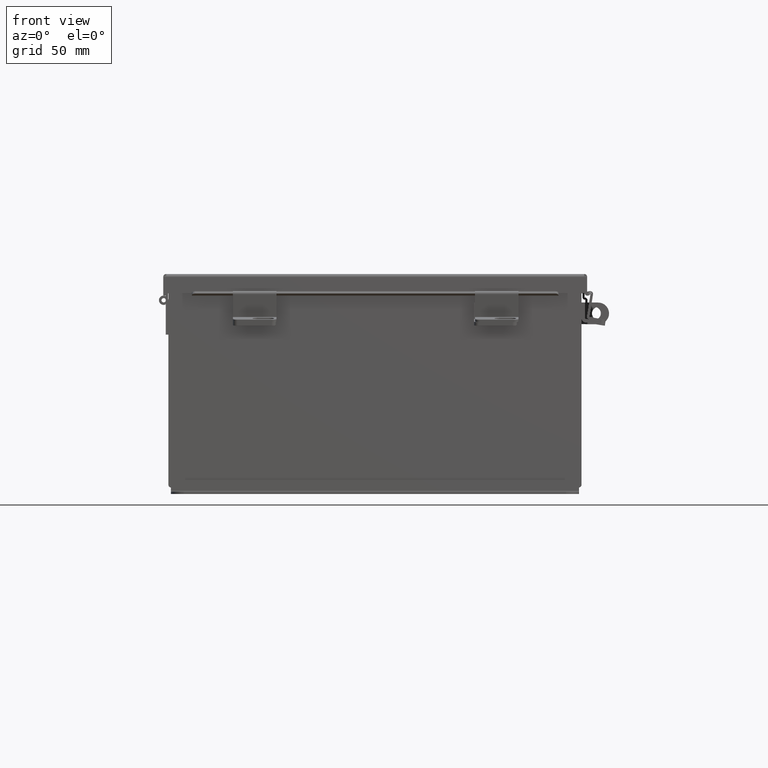
[diagram: clean part render]
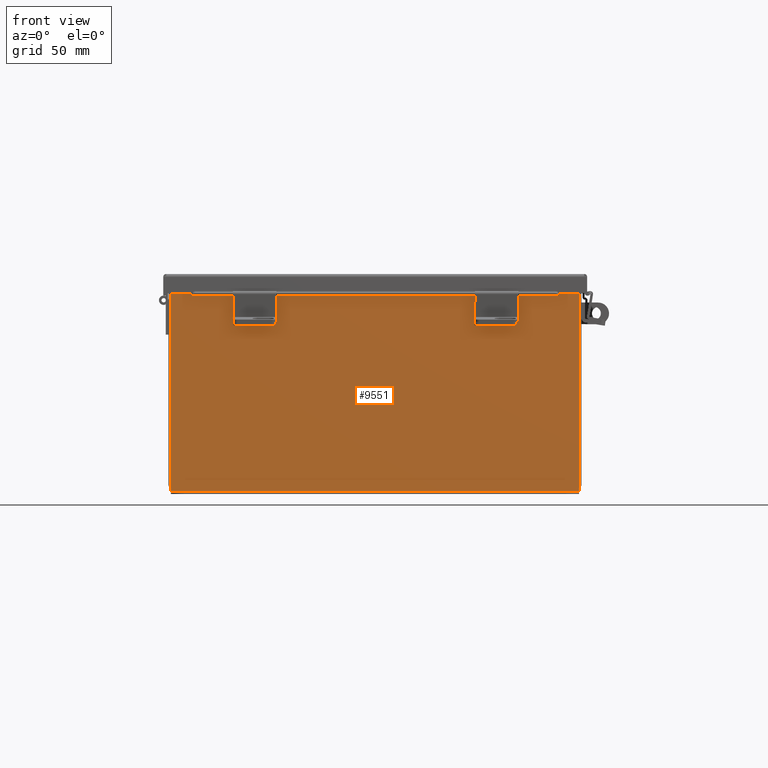
[diagram: same view with one face highlighted and labeled with its STEP entity id]
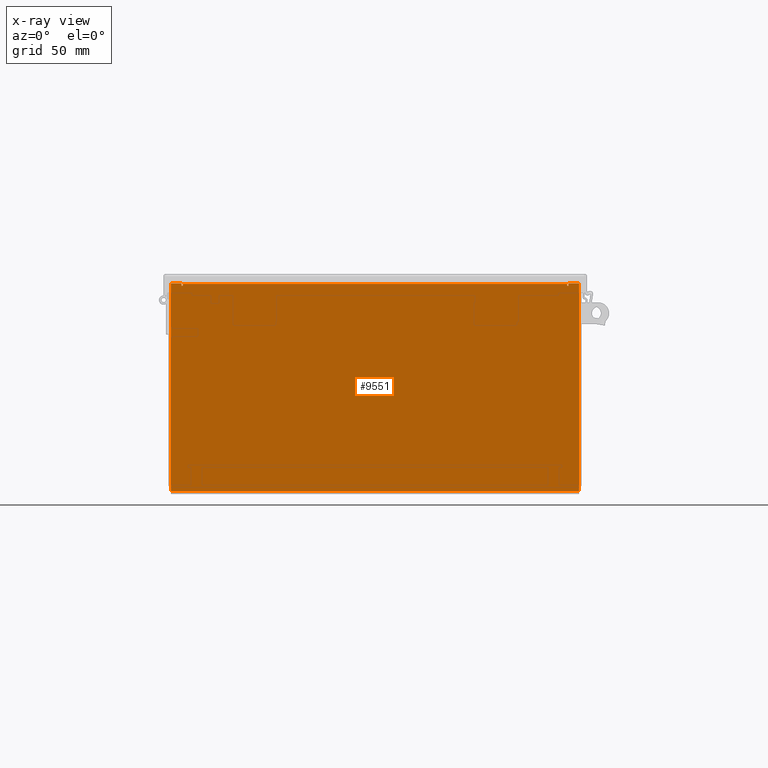
[diagram: x-ray of the same camera — body ghosted, the highlighted face saturated]
A machine part, front view. The second image highlights one B-rep face of the part: STEP entity #9551.
The next image is the same camera in x-ray: the body ghosted, the highlighted face saturated — about 0% of this face is hidden behind the body in this view.
In plain terms, the highlighted planar face has unit normal (-0, 1, -0).
Its self-contained STEP definition (entity closure, byte-faithful):
#215 = DIRECTION ( 'NONE',  ( 1.000000000000000000, 0.0000000000000000000, 0.0000000000000000000 ) ) ;
#321 = ORIENTED_EDGE ( 'NONE', *, *, #9995, .T. ) ;
#562 = DIRECTION ( 'NONE',  ( -0.0000000000000000000, -0.0000000000000000000, 1.000000000000000000 ) ) ;
#618 = AXIS2_PLACEMENT_3D ( 'NONE', #2483, #12542, #3938 ) ;
#650 = EDGE_CURVE ( 'NONE', #7864, #7455, #8608, .T. ) ;
#672 = ORIENTED_EDGE ( 'NONE', *, *, #650, .T. ) ;
#789 = DIRECTION ( 'NONE',  ( 1.000000000000000000, 0.0000000000000000000, 0.0000000000000000000 ) ) ;
#818 = VERTEX_POINT ( 'NONE', #11989 ) ;
#853 = EDGE_LOOP ( 'NONE', ( #12527, #11782, #3981, #672, #12972, #17708, #9816, #321, #3625, #18167, #6450, #16700 ) ) ;
#1237 = CARTESIAN_POINT ( 'NONE',  ( 0.0000000000000000000, 0.0000000000000000000, 0.0000000000000000000 ) ) ;
#1622 = DIRECTION ( 'NONE',  ( 1.000000000000000000, -0.0000000000000000000, -0.0000000000000000000 ) ) ;
#1797 = VERTEX_POINT ( 'NONE', #7756 ) ;
#1814 = CARTESIAN_POINT ( 'NONE',  ( 5.582299999999999200, 0.0000000000000000000, 2.912299999999998800 ) ) ;
#1830 = DIRECTION ( 'NONE',  ( -2.170286390199955400E-014, 0.0000000000000000000, -1.000000000000000000 ) ) ;
#1844 = LINE ( 'NONE', #13289, #12849 ) ;
#1970 = VERTEX_POINT ( 'NONE', #16709 ) ;
#2068 = LINE ( 'NONE', #8111, #10166 ) ;
#2238 = CARTESIAN_POINT ( 'NONE',  ( -5.925300000000001800, 0.0000000000000000000, 2.925300000000000000 ) ) ;
#2273 = LINE ( 'NONE', #5915, #13258 ) ;
#2483 = CARTESIAN_POINT ( 'NONE',  ( -5.600975000000000000, 0.0000000000000000000, 2.874949999999998800 ) ) ;
#2655 = VERTEX_POINT ( 'NONE', #13838 ) ;
#3625 = ORIENTED_EDGE ( 'NONE', *, *, #6205, .T. ) ;
#3626 = EDGE_CURVE ( 'NONE', #8523, #5461, #9955, .T. ) ;
#3938 = DIRECTION ( 'NONE',  ( 0.0000000000000000000, 0.0000000000000000000, -1.000000000000000000 ) ) ;
#3981 = ORIENTED_EDGE ( 'NONE', *, *, #5959, .F. ) ;
#4160 = PLANE ( 'NONE',  #14575 ) ;
#4367 = VERTEX_POINT ( 'NONE', #12692 ) ;
#5461 = VERTEX_POINT ( 'NONE', #18245 ) ;
#5623 = DIRECTION ( 'NONE',  ( 0.0000000000000000000, -0.0000000000000000000, -1.000000000000000000 ) ) ;
#5915 = CARTESIAN_POINT ( 'NONE',  ( -5.619650000000000000, -0.0000000000000000000, 0.0000000000000000000 ) ) ;
#5959 = EDGE_CURVE ( 'NONE', #7864, #4367, #1844, .T. ) ;
#6118 = CARTESIAN_POINT ( 'NONE',  ( 5.582299999999999200, 0.0000000000000000000, 0.0000000000000000000 ) ) ;
#6205 = EDGE_CURVE ( 'NONE', #16565, #1970, #2068, .T. ) ;
#6450 = ORIENTED_EDGE ( 'NONE', *, *, #7542, .T. ) ;
#6912 = VERTEX_POINT ( 'NONE', #8714 ) ;
#7364 = DIRECTION ( 'NONE',  ( 0.0000000000000000000, 0.0000000000000000000, 1.000000000000000000 ) ) ;
#7455 = VERTEX_POINT ( 'NONE', #1814 ) ;
#7542 = EDGE_CURVE ( 'NONE', #1797, #818, #16426, .T. ) ;
#7756 = CARTESIAN_POINT ( 'NONE',  ( -5.925300000000000000, -9.177301853715884100E-017, -3.099299999999999900 ) ) ;
#7864 = VERTEX_POINT ( 'NONE', #8412 ) ;
#8111 = CARTESIAN_POINT ( 'NONE',  ( 5.925299999999999100, 0.0000000000000000000, 2.925300000000000000 ) ) ;
#8202 = VECTOR ( 'NONE', #789, 39.37007874015748100 ) ;
#8327 = EDGE_CURVE ( 'NONE', #4367, #2655, #17450, .T. ) ;
#8412 = CARTESIAN_POINT ( 'NONE',  ( -5.582300000000000000, 2.287922694693820400E-015, 2.912299999999998800 ) ) ;
#8452 = DIRECTION ( 'NONE',  ( -0.0000000000000000000, 1.000000000000000000, -0.0000000000000000000 ) ) ;
#8523 = VERTEX_POINT ( 'NONE', #15781 ) ;
#8608 = LINE ( 'NONE', #8799, #12425 ) ;
#8714 = CARTESIAN_POINT ( 'NONE',  ( -5.619650000000000000, 0.0000000000000000000, 2.925300000000000000 ) ) ;
#8799 = CARTESIAN_POINT ( 'NONE',  ( -5.582300000000000900, 2.287922694693820400E-015, 2.912299999999998800 ) ) ;
#8928 = DIRECTION ( 'NONE',  ( 0.0000000000000000000, 0.0000000000000000000, 1.000000000000000000 ) ) ;
#8954 = AXIS2_PLACEMENT_3D ( 'NONE', #17049, #8452, #18481 ) ;
#8996 = CARTESIAN_POINT ( 'NONE',  ( 5.619649999999937000, -0.0000000000000000000, -1.219624991268704500E-013 ) ) ;
#9551 = ADVANCED_FACE ( 'NONE', ( #12491 ), #4160, .F. ) ;
#9816 = ORIENTED_EDGE ( 'NONE', *, *, #13113, .F. ) ;
#9955 = CIRCLE ( 'NONE', #8954, 0.01867500000000003900 ) ;
#9995 = EDGE_CURVE ( 'NONE', #17688, #16565, #15840, .T. ) ;
#10166 = VECTOR ( 'NONE', #18152, 39.37007874015748100 ) ;
#10217 = VECTOR ( 'NONE', #1622, 39.37007874015748100 ) ;
#10248 = CARTESIAN_POINT ( 'NONE',  ( -5.925300000000001800, -9.177301853715884100E-017, -3.099299999999999900 ) ) ;
#10501 = DIRECTION ( 'NONE',  ( 0.0000000000000000000, 0.0000000000000000000, -1.000000000000000000 ) ) ;
#10827 = VECTOR ( 'NONE', #8928, 39.37007874015748100 ) ;
#10858 = EDGE_CURVE ( 'NONE', #818, #6912, #14670, .T. ) ;
#11197 = CARTESIAN_POINT ( 'NONE',  ( 5.925299999999999100, 0.0000000000000000000, 2.925300000000000000 ) ) ;
#11448 = CARTESIAN_POINT ( 'NONE',  ( -5.925300000000001800, 0.0000000000000000000, 2.925300000000000000 ) ) ;
#11782 = ORIENTED_EDGE ( 'NONE', *, *, #8327, .F. ) ;
#11989 = CARTESIAN_POINT ( 'NONE',  ( -5.925300000000001800, 0.0000000000000000000, 2.925300000000000000 ) ) ;
#12026 = VECTOR ( 'NONE', #1830, 39.37007874015748100 ) ;
#12425 = VECTOR ( 'NONE', #215, 39.37007874015748100 ) ;
#12491 = FACE_OUTER_BOUND ( 'NONE', #853, .T. ) ;
#12527 = ORIENTED_EDGE ( 'NONE', *, *, #15526, .F. ) ;
#12542 = DIRECTION ( 'NONE',  ( -0.0000000000000000000, 1.000000000000000000, -0.0000000000000000000 ) ) ;
#12621 = VECTOR ( 'NONE', #562, 39.37007874015748100 ) ;
#12692 = CARTESIAN_POINT ( 'NONE',  ( -5.582300000000000000, -0.0000000000000000000, 2.874949999999998800 ) ) ;
#12849 = VECTOR ( 'NONE', #10501, 39.37007874015748100 ) ;
#12972 = ORIENTED_EDGE ( 'NONE', *, *, #14968, .F. ) ;
#13113 = EDGE_CURVE ( 'NONE', #17688, #8523, #16299, .T. ) ;
#13258 = VECTOR ( 'NONE', #7364, 39.37007874015748100 ) ;
#13289 = CARTESIAN_POINT ( 'NONE',  ( -5.582300000000000000, -0.0000000000000000000, 0.0000000000000000000 ) ) ;
#13324 = CARTESIAN_POINT ( 'NONE',  ( 5.619650000000000000, 0.0000000000000000000, 2.925300000000000000 ) ) ;
#13729 = EDGE_CURVE ( 'NONE', #1797, #1970, #18307, .T. ) ;
#13838 = CARTESIAN_POINT ( 'NONE',  ( -5.619650000000000000, 0.0000000000000000000, 2.874949999999998800 ) ) ;
#14162 = DIRECTION ( 'NONE',  ( 0.0000000000000000000, -1.000000000000000000, 0.0000000000000000000 ) ) ;
#14575 = AXIS2_PLACEMENT_3D ( 'NONE', #1237, #14162, #5623 ) ;
#14670 = LINE ( 'NONE', #11448, #18049 ) ;
#14968 = EDGE_CURVE ( 'NONE', #5461, #7455, #15562, .T. ) ;
#15526 = EDGE_CURVE ( 'NONE', #2655, #6912, #2273, .T. ) ;
#15562 = LINE ( 'NONE', #6118, #10827 ) ;
#15781 = CARTESIAN_POINT ( 'NONE',  ( 5.619649999999998300, 0.0000000000000000000, 2.874949999999998800 ) ) ;
#15840 = LINE ( 'NONE', #2238, #8202 ) ;
#16299 = LINE ( 'NONE', #8996, #12026 ) ;
#16426 = LINE ( 'NONE', #17764, #12621 ) ;
#16565 = VERTEX_POINT ( 'NONE', #11197 ) ;
#16700 = ORIENTED_EDGE ( 'NONE', *, *, #10858, .T. ) ;
#16709 = CARTESIAN_POINT ( 'NONE',  ( 5.925299999999999100, -9.177301853715884100E-017, -3.099299999999999900 ) ) ;
#17049 = CARTESIAN_POINT ( 'NONE',  ( 5.600974999999998300, 0.0000000000000000000, 2.874949999999998800 ) ) ;
#17237 = DIRECTION ( 'NONE',  ( 1.000000000000000000, 0.0000000000000000000, 0.0000000000000000000 ) ) ;
#17450 = CIRCLE ( 'NONE', #618, 0.01867500000000003900 ) ;
#17688 = VERTEX_POINT ( 'NONE', #13324 ) ;
#17708 = ORIENTED_EDGE ( 'NONE', *, *, #3626, .F. ) ;
#17764 = CARTESIAN_POINT ( 'NONE',  ( -5.925300000000001800, 0.0000000000000000000, 2.925300000000000000 ) ) ;
#18049 = VECTOR ( 'NONE', #17237, 39.37007874015748100 ) ;
#18152 = DIRECTION ( 'NONE',  ( 0.0000000000000000000, 0.0000000000000000000, -1.000000000000000000 ) ) ;
#18167 = ORIENTED_EDGE ( 'NONE', *, *, #13729, .F. ) ;
#18245 = CARTESIAN_POINT ( 'NONE',  ( 5.582299999999999200, 0.0000000000000000000, 2.874949999999998800 ) ) ;
#18307 = LINE ( 'NONE', #10248, #10217 ) ;
#18481 = DIRECTION ( 'NONE',  ( 0.0000000000000000000, 0.0000000000000000000, -1.000000000000000000 ) ) ;